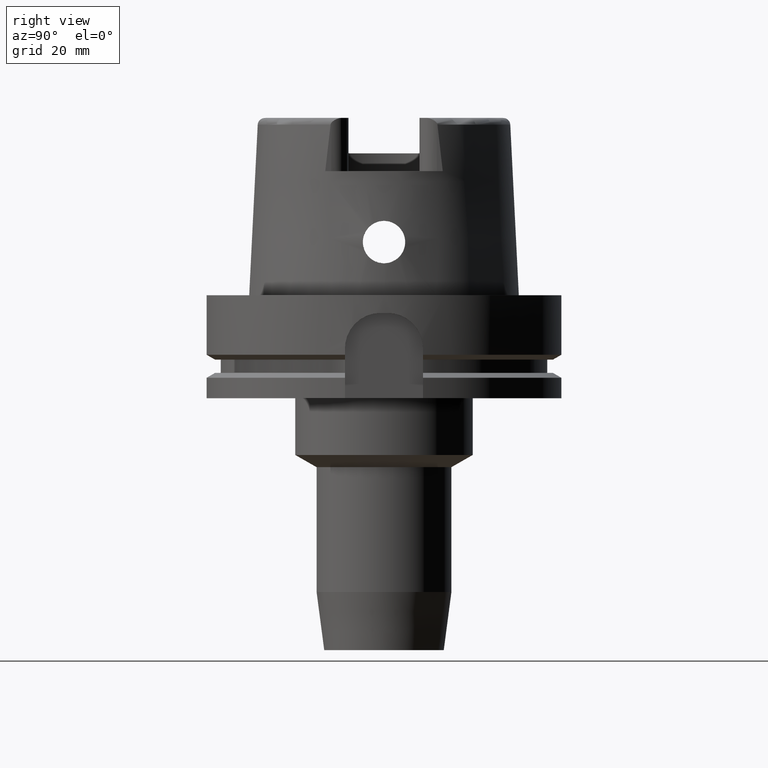
[diagram: clean part render]
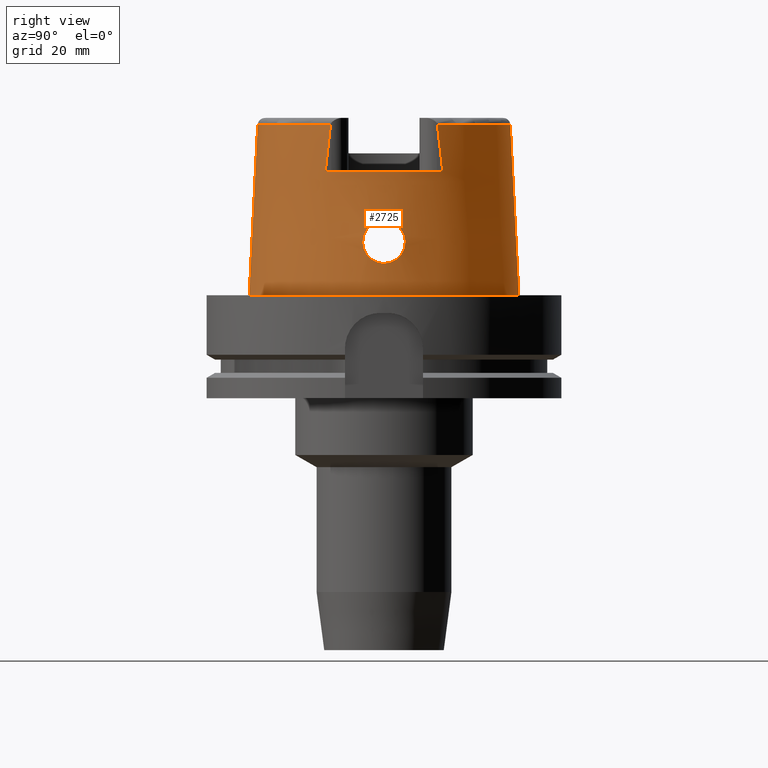
[diagram: same view with one face highlighted and labeled with its STEP entity id]
A machine part, right view. The second image highlights one B-rep face of the part: STEP entity #2725.
In plain terms, the highlighted conical surface has half-angle 2.862 deg.
Its self-contained STEP definition (entity closure, byte-faithful):
#252=CARTESIAN_POINT('',(3.225000552017E1,-1.506439825056E1,4.810004202827E1));
#257=CARTESIAN_POINT('',(0.E0,0.E0,4.809987853799E1));
#258=DIRECTION('',(0.E0,0.E0,-1.E0));
#259=DIRECTION('',(9.060280460805E-1,-4.232176505246E-1,0.E0));
#260=AXIS2_PLACEMENT_3D('',#257,#258,#259);
#283=DIRECTION('',(5.154182075151E-5,-4.993927430816E-2,-9.987522546783E-1));
#284=VECTOR('',#283,4.815996991514E1);
#285=CARTESIAN_POINT('',(-2.482252536761E-3,-3.559494263425E1,
4.809987853799E1));
#286=LINE('',#285,#284);
#340=CARTESIAN_POINT('',(3.224999527489E1,1.655287543599E1,3.5E1));
#341=CARTESIAN_POINT('',(3.224999527489E1,1.639226210430E1,3.646677430492E1));
#342=CARTESIAN_POINT('',(3.224999958003E1,1.606837254069E1,3.939292748184E1));
#343=CARTESIAN_POINT('',(3.225000855756E1,1.557203234401E1,4.375938228906E1));
#344=CARTESIAN_POINT('',(3.224998031234E1,1.523513261005E1,4.665592291514E1));
#345=CARTESIAN_POINT('',(3.224998031234E1,1.506460279463E1,4.809931511369E1));
#350=DIRECTION('',(-5.154182075159E-5,4.993927430816E-2,-9.987522546783E-1));
#351=VECTOR('',#350,4.815996991514E1);
#352=CARTESIAN_POINT('',(2.482252536765E-3,3.559494263425E1,4.809987853799E1));
#353=LINE('',#352,#351);
#357=CARTESIAN_POINT('',(3.225000552017E1,-1.506439825056E1,4.810004202827E1));
#358=CARTESIAN_POINT('',(3.225000552017E1,-1.523503290811E1,4.665577794998E1));
#359=CARTESIAN_POINT('',(3.225000026293E1,-1.557219472126E1,4.376011584890E1));
#360=CARTESIAN_POINT('',(3.224999079948E1,-1.606856473750E1,3.939344258777E1));
#361=CARTESIAN_POINT('',(3.225002129259E1,-1.639212166417E1,3.646699412941E1));
#362=CARTESIAN_POINT('',(3.225002129259E1,-1.655276054267E1,3.5E1));
#367=CARTESIAN_POINT('',(3.694998175923E1,-1.503990973345E-13,2.1E1));
#368=CARTESIAN_POINT('',(3.694998175923E1,-4.801222796185E-1,2.1E1));
#369=CARTESIAN_POINT('',(3.693669366660E1,-1.443210113037E0,2.088406064797E1));
#370=CARTESIAN_POINT('',(3.688219584729E1,-2.812916296094E0,2.036732646681E1));
#371=CARTESIAN_POINT('',(3.680959249898E1,-4.024003386513E0,1.952890278218E1));
#372=CARTESIAN_POINT('',(3.674459558869E1,-4.979872484364E0,1.844892315349E1));
#373=CARTESIAN_POINT('',(3.670930638764E1,-5.660220792816E0,1.716003568405E1));
#374=CARTESIAN_POINT('',(3.672371405555E1,-6.010812148355E0,1.575296070450E1));
#375=CARTESIAN_POINT('',(3.679609406754E1,-6.017219070757E0,1.430388022228E1));
#376=CARTESIAN_POINT('',(3.692158813063E1,-5.682205678798E0,1.289788445402E1));
#377=CARTESIAN_POINT('',(3.708641844109E1,-5.010162458556E0,1.159383957746E1));
#378=CARTESIAN_POINT('',(3.726069742911E1,-4.055089398365E0,1.049623581790E1));
#379=CARTESIAN_POINT('',(3.742022059306E1,-2.819539481176E0,9.633260221573E0));
#380=CARTESIAN_POINT('',(3.752609166017E1,-1.432086152719E0,9.112857807901E0));
#381=CARTESIAN_POINT('',(3.755000165825E1,-4.739003856975E-1,9.E0));
#382=CARTESIAN_POINT('',(3.755000165825E1,0.E0,9.E0));
#387=CARTESIAN_POINT('',(3.755000165825E1,0.E0,9.E0));
#388=CARTESIAN_POINT('',(3.755000165825E1,4.748717877039E-1,9.E0));
#389=CARTESIAN_POINT('',(3.752590005182E1,1.429223132431E0,9.113837078096E0));
#390=CARTESIAN_POINT('',(3.742286250641E1,2.788722725467E0,9.620236693825E0));
#391=CARTESIAN_POINT('',(3.726787610831E1,4.006559862930E0,1.045604495804E1));
#392=CARTESIAN_POINT('',(3.709646491924E1,4.962081159272E0,1.152500430565E1));
#393=CARTESIAN_POINT('',(3.692895214307E1,5.657933319407E0,1.282856529403E1));
#394=CARTESIAN_POINT('',(3.679931372054E1,6.013032690658E0,1.425415378802E1));
#395=CARTESIAN_POINT('',(3.672465945591E1,6.015571731222E0,1.571872377740E1));
#396=CARTESIAN_POINT('',(3.670906236367E1,5.672133982509E0,1.712765889772E1));
#397=CARTESIAN_POINT('',(3.674321414887E1,5.000994052514E0,1.841841191620E1));
#398=CARTESIAN_POINT('',(3.680801529451E1,4.047738590028E0,1.950861253014E1));
#399=CARTESIAN_POINT('',(3.688125658064E1,2.832471147067E0,2.035809215775E1));
#400=CARTESIAN_POINT('',(3.693653533558E1,1.452436939985E0,2.088273760984E1));
#401=CARTESIAN_POINT('',(3.694998175923E1,4.830713192358E-1,2.1E1));
#402=CARTESIAN_POINT('',(3.694998175923E1,-1.503990973345E-13,2.1E1));
#437=CARTESIAN_POINT('',(0.E0,0.E0,3.5E1));
#438=DIRECTION('',(0.E0,0.E0,-1.E0));
#439=DIRECTION('',(8.896561898443E-1,4.566309931135E-1,0.E0));
#440=AXIS2_PLACEMENT_3D('',#437,#438,#439);
#1932=CARTESIAN_POINT('',(0.E0,0.E0,1.023181539495E-12));
#1933=DIRECTION('',(0.E0,0.E0,1.E0));
#1934=DIRECTION('',(0.E0,-1.E0,0.E0));
#1935=AXIS2_PLACEMENT_3D('',#1932,#1933,#1934);
#2144=CARTESIAN_POINT('',(0.E0,0.E0,4.809987853799E1));
#2145=DIRECTION('',(0.E0,0.E0,-1.E0));
#2146=DIRECTION('',(0.E0,1.E0,0.E0));
#2147=AXIS2_PLACEMENT_3D('',#2144,#2145,#2146);
#2230=CARTESIAN_POINT('',(0.E0,3.559494289391E1,4.809987853799E1));
#2231=VERTEX_POINT('',#2230);
#2232=CARTESIAN_POINT('',(3.224994093704E1,1.506456999646E1,4.809987853799E1));
#2233=VERTEX_POINT('',#2232);
#2237=VERTEX_POINT('',#252);
#2238=CARTESIAN_POINT('',(1.065814103640E-14,-3.559494289391E1,
4.809987853799E1));
#2239=VERTEX_POINT('',#2238);
#2240=CARTESIAN_POINT('',(0.E0,-3.800001658252E1,6.892264536873E-13));
#2241=VERTEX_POINT('',#2240);
#2242=CARTESIAN_POINT('',(0.E0,3.800001658252E1,1.023181539495E-12));
#2243=VERTEX_POINT('',#2242);
#2246=CARTESIAN_POINT('',(3.225E1,1.655285457013E1,3.5E1));
#2247=CARTESIAN_POINT('',(3.225E1,-1.655285457013E1,3.5E1));
#2248=VERTEX_POINT('',#2246);
#2249=VERTEX_POINT('',#2247);
#2250=VERTEX_POINT('',#367);
#2251=VERTEX_POINT('',#382);
#2699=CARTESIAN_POINT('',(0.E0,0.E0,2.404993926900E1));
#2700=DIRECTION('',(0.E0,0.E0,-1.E0));
#2701=DIRECTION('',(0.E0,-1.E0,0.E0));
#2702=AXIS2_PLACEMENT_3D('',#2699,#2700,#2701);
#2703=CONICAL_SURFACE('',#2702,3.679747973821E1,2.8625E0);
#2705=ORIENTED_EDGE('',*,*,#2704,.F.);
#2707=ORIENTED_EDGE('',*,*,#2706,.T.);
#2709=ORIENTED_EDGE('',*,*,#2708,.F.);
#2710=ORIENTED_EDGE('',*,*,#2684,.T.);
#2712=ORIENTED_EDGE('',*,*,#2711,.F.);
#2713=ORIENTED_EDGE('',*,*,#2680,.F.);
#2714=ORIENTED_EDGE('',*,*,#2652,.F.);
#2716=ORIENTED_EDGE('',*,*,#2715,.T.);
#2717=EDGE_LOOP('',(#2705,#2707,#2709,#2710,#2712,#2713,#2714,#2716));
#2718=FACE_OUTER_BOUND('',#2717,.F.);
#2720=ORIENTED_EDGE('',*,*,#2719,.T.);
#2722=ORIENTED_EDGE('',*,*,#2721,.T.);
#2723=EDGE_LOOP('',(#2720,#2722));
#2724=FACE_BOUND('',#2723,.F.);
#261=CIRCLE('',#260,3.559494289391E1);
#346=B_SPLINE_CURVE_WITH_KNOTS('',3,(#340,#341,#342,#343,#344,#345),
.UNSPECIFIED.,.F.,.F.,(4,1,1,4),(0.E0,3.333333333333E-1,6.666666666667E-1,1.E0),
.UNSPECIFIED.);
#363=B_SPLINE_CURVE_WITH_KNOTS('',3,(#357,#358,#359,#360,#361,#362),
.UNSPECIFIED.,.F.,.F.,(4,1,1,4),(0.E0,3.333333333333E-1,6.666666666667E-1,1.E0),
.UNSPECIFIED.);
#383=B_SPLINE_CURVE_WITH_KNOTS('',3,(#367,#368,#369,#370,#371,#372,#373,#374,
#375,#376,#377,#378,#379,#380,#381,#382),.UNSPECIFIED.,.F.,.F.,(4,1,1,1,1,1,1,1,
1,1,1,1,1,4),(0.E0,7.692307692308E-2,1.538461538462E-1,2.307692307692E-1,
3.076923076923E-1,3.846153846154E-1,4.615384615385E-1,5.384615384615E-1,
6.153846153846E-1,6.923076923077E-1,7.692307692308E-1,8.461538461538E-1,
9.230769230769E-1,1.E0),.UNSPECIFIED.);
#403=B_SPLINE_CURVE_WITH_KNOTS('',3,(#387,#388,#389,#390,#391,#392,#393,#394,
#395,#396,#397,#398,#399,#400,#401,#402),.UNSPECIFIED.,.F.,.F.,(4,1,1,1,1,1,1,1,
1,1,1,1,1,4),(0.E0,7.692307692308E-2,1.538461538462E-1,2.307692307692E-1,
3.076923076923E-1,3.846153846154E-1,4.615384615385E-1,5.384615384615E-1,
6.153846153846E-1,6.923076923077E-1,7.692307692308E-1,8.461538461538E-1,
9.230769230769E-1,1.E0),.UNSPECIFIED.);
#441=CIRCLE('',#440,3.624995854370E1);
#1936=CIRCLE('',#1935,3.800001658252E1);
#2148=CIRCLE('',#2147,3.559494289391E1);
#2652=EDGE_CURVE('',#2237,#2239,#261,.T.);
#2680=EDGE_CURVE('',#2239,#2241,#286,.T.);
#2684=EDGE_CURVE('',#2231,#2243,#353,.T.);
#2704=EDGE_CURVE('',#2248,#2249,#441,.T.);
#2706=EDGE_CURVE('',#2248,#2233,#346,.T.);
#2708=EDGE_CURVE('',#2231,#2233,#2148,.T.);
#2711=EDGE_CURVE('',#2241,#2243,#1936,.T.);
#2715=EDGE_CURVE('',#2237,#2249,#363,.T.);
#2719=EDGE_CURVE('',#2250,#2251,#383,.T.);
#2721=EDGE_CURVE('',#2251,#2250,#403,.T.);
#2725=ADVANCED_FACE('',(#2718,#2724),#2703,.T.);